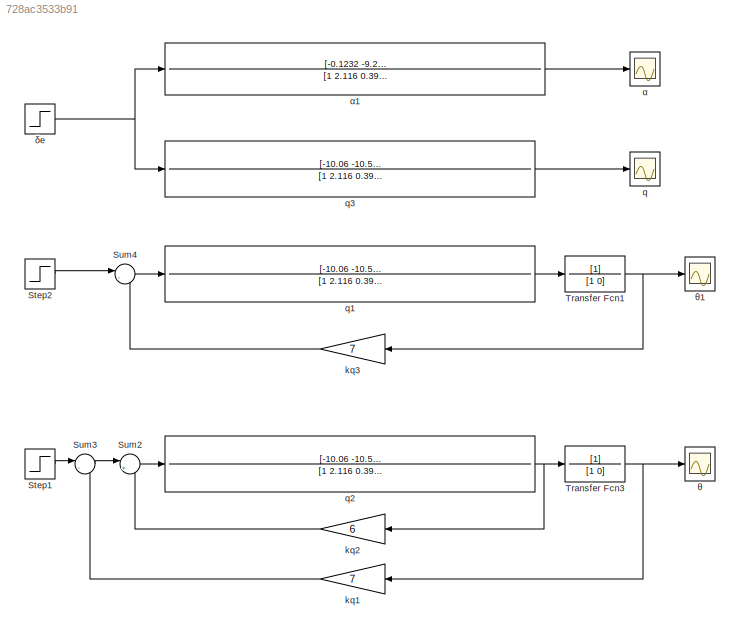
MODEL slx_728ac3533b91
KIND model
CONFIG AbsTol = auto
CONFIG EnableMultiTasking = off
CONFIG FixedStep = auto
CONFIG MaxStep = auto
CONFIG MinStep = auto
CONFIG RelTol = 1e-3
CONFIG SampleTimeConstraint = Unconstrained
CONFIG SolverName = VariableStepAuto
CONFIG StartTime = 0.0
CONFIG StopTime = 30
BLOCK [Step] Step1
  SampleTime = 0
BLOCK [Step] Step2
  SampleTime = 0
BLOCK [Sum] Sum2
  Inputs = |++
  NameLocation = top
BLOCK [Sum] Sum3
  Inputs = |-+
  NameLocation = top
BLOCK [Sum] Sum4
  Inputs = |-+
  NameLocation = top
BLOCK [TransferFcn] Transfer Fcn1
  Denominator = [1 0]
BLOCK [TransferFcn] Transfer Fcn3
  Denominator = [1 0]
BLOCK [Gain] kq1
  Gain = 7
BLOCK [Gain] kq2
  Gain = 6
BLOCK [Gain] kq3
  Gain = 7
BLOCK [Scope] q
  Floating = off
  NumInputPorts = 1
  ScopeSpecificationString = Simulink.scopes.TimeScopeBlockCfg('CurrentConfiguration', extmgr.ConfigurationSet(extmgr.Configuration('Core','General UI',true,'FigureColor',[1 1 1]),extmgr.Configuration('Core','Source UI',true),extmgr.Configuration('Sources','WiredSimulink',true,'DataLoggingVariableName','ScopeData1'),extmgr.Configuration('Visuals','Time Domain',true,'SerializedDisplays',{struct('MinYLimReal','-170.57871','MaxY...<+1500ch>
BLOCK [TransferFcn] q1
  Denominator = [1 2.116 0.3963 0.009119 -0.006716]
  Numerator = [-10.06 -10.54 -0.2245 1.163e-16]
BLOCK [TransferFcn] q2
  Denominator = [1 2.116 0.3963 0.009119 -0.006716]
  Numerator = [-10.06 -10.54 -0.2245 1.163e-16]
BLOCK [TransferFcn] q3
  Denominator = [1 2.116 0.3963 0.009119 -0.006716]
  Numerator = [-10.06 -10.54 -0.2245 1.163e-16]
BLOCK [Scope] α
  Floating = off
  NumInputPorts = 1
  ScopeSpecificationString = Simulink.scopes.TimeScopeBlockCfg('CurrentConfiguration', extmgr.ConfigurationSet(extmgr.Configuration('Core','General UI',true,'FigureColor',[1 1 1]),extmgr.Configuration('Core','Source UI',true),extmgr.Configuration('Sources','WiredSimulink',true),extmgr.Configuration('Visuals','Time Domain',true,'SerializedDisplays',{struct('MinYLimReal','-229.98061','MaxYLimReal','25.5534','YLabelReal','','Min...<+1551ch>
BLOCK [TransferFcn] α1
  Denominator = [1 2.116 0.3963 0.009119 -0.006716]
  Numerator = [-0.1232 -9.241 -0.1825 -0.08215]
BLOCK [Step] δe
  SampleTime = 0
BLOCK [Scope] θ
  Floating = off
  NumInputPorts = 1
  ScopeSpecificationString = Simulink.scopes.TimeScopeBlockCfg('CurrentConfiguration', extmgr.ConfigurationSet(extmgr.Configuration('Core','General UI',true,'FigureColor',[1 1 1]),extmgr.Configuration('Core','Source UI',true),extmgr.Configuration('Sources','WiredSimulink',true,'DataLoggingVariableName','ScopeData1'),extmgr.Configuration('Visuals','Time Domain',true,'SerializedDisplays',{struct('MinYLimReal','-0.01789','MaxYLi...<+1532ch>
BLOCK [Scope] θ1
  Floating = off
  NumInputPorts = 1
  ScopeSpecificationString = Simulink.scopes.TimeScopeBlockCfg('CurrentConfiguration', extmgr.ConfigurationSet(extmgr.Configuration('Core','General UI',true,'FigureColor',[1 1 1]),extmgr.Configuration('Core','Source UI',true),extmgr.Configuration('Sources','WiredSimulink',true,'DataLoggingVariableName','ScopeData1'),extmgr.Configuration('Visuals','Time Domain',true,'SerializedDisplays',{struct('MinYLimReal','-0.0327','MaxYLim...<+1526ch>
LINE Step1:1 -> Sum3:1
LINE Step2:1 -> Sum4:1
LINE Sum2:1 -> q2:1
LINE Sum3:1 -> Sum2:1
LINE Sum4:1 -> q1:1
NET Transfer Fcn1:1 -> kq3:1, θ1:1
NET Transfer Fcn3:1 -> kq1:1, θ:1
LINE kq1:1 -> Sum3:2
LINE kq2:1 -> Sum2:2
LINE kq3:1 -> Sum4:2
LINE q1:1 -> Transfer Fcn1:1
NET q2:1 -> Transfer Fcn3:1, kq2:1
LINE q3:1 -> q:1
LINE α1:1 -> α:1
NET δe:1 -> q3:1, α1:1
note: NET lines group one-source signal fan-out (src -> all destinations, sorted); 1:1 wires keep LINE
